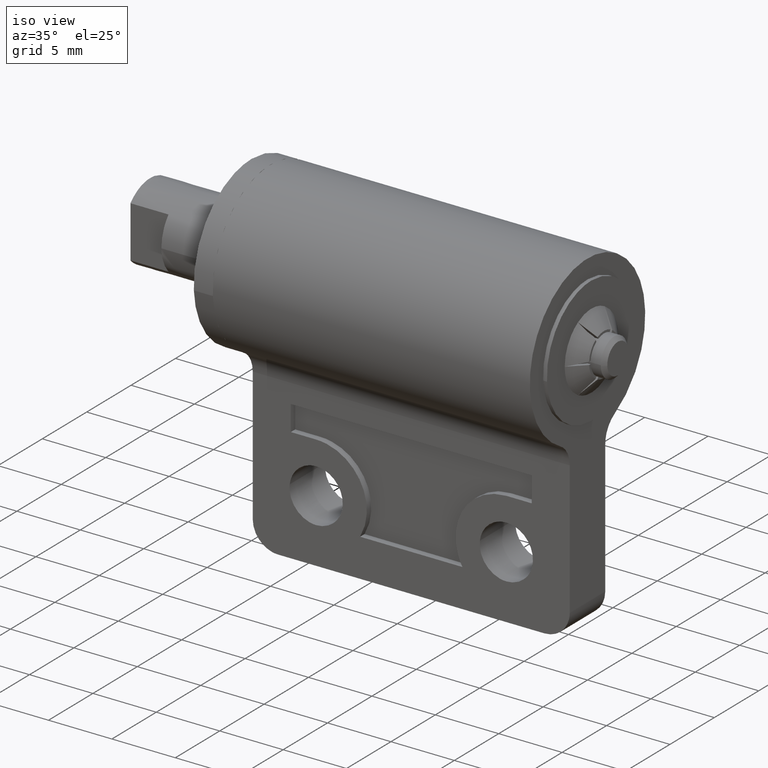
[diagram: clean part render]
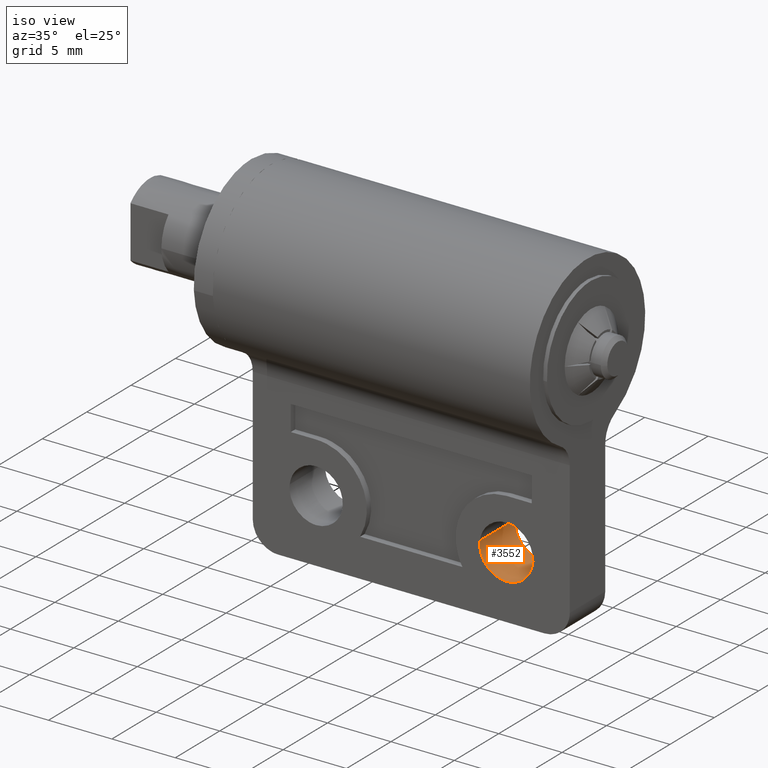
[diagram: same view with one face highlighted and labeled with its STEP entity id]
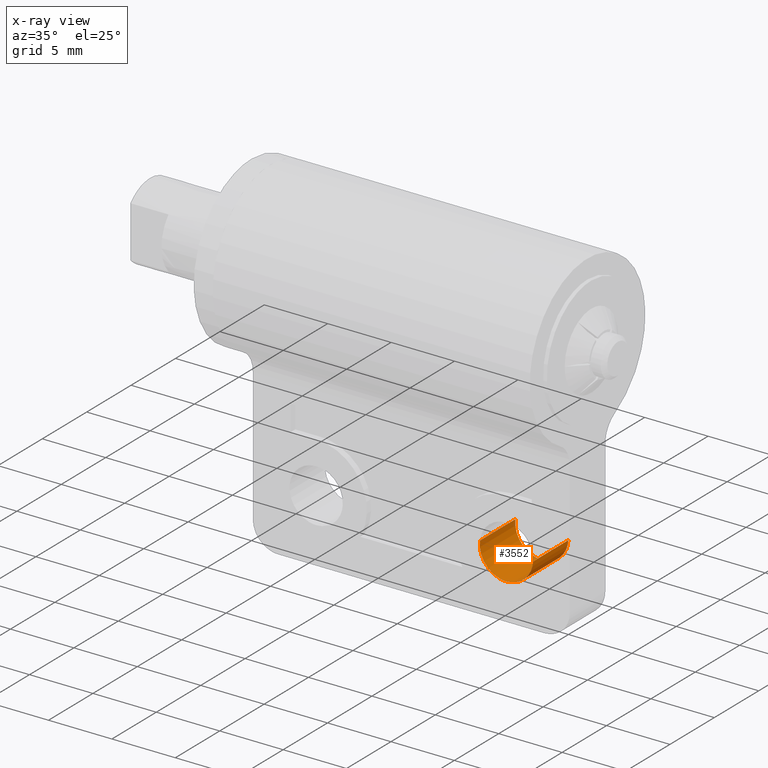
[diagram: x-ray of the same camera — body ghosted, the highlighted face saturated]
A machine part, iso view. The second image highlights one B-rep face of the part: STEP entity #3552.
The next image is the same camera in x-ray: the body ghosted, the highlighted face saturated — about 2% of this face is hidden behind the body in this view.
In plain terms, the highlighted face is a freeform B-spline surface patch.
Its self-contained STEP definition (entity closure, byte-faithful):
#3450=CARTESIAN_POINT('',(24.414679994636302,2.099999999999776,-14.752128107220814));
#3451=CARTESIAN_POINT('',(24.407586007557921,2.099999999999775,-14.811809069860246));
#3452=CARTESIAN_POINT('',(24.403916923314078,2.099999999999775,-14.871798066976799));
#3453=CARTESIAN_POINT('',(24.275714990290883,2.099999999999775,-16.967881143662716));
#3454=CARTESIAN_POINT('',(26.371798066976801,2.099999999999775,-17.096083076685922));
#3455=CARTESIAN_POINT('',(28.467881143662723,2.099999999999775,-17.224285009709121));
#3456=CARTESIAN_POINT('',(28.596083076685922,2.099999999999775,-15.128201933023201));
#3457=CARTESIAN_POINT('',(24.414679994636302,-2.102499999999995,-14.752128107220814));
#3458=CARTESIAN_POINT('',(24.407586007557921,-2.102499999999994,-14.811809069860246));
#3459=CARTESIAN_POINT('',(24.403916923314078,-2.102499999999995,-14.871798066976799));
#3460=CARTESIAN_POINT('',(24.275714990290883,-2.102499999999995,-16.967881143662716));
#3461=CARTESIAN_POINT('',(26.371798066976801,-2.102499999999995,-17.096083076685922));
#3462=CARTESIAN_POINT('',(28.467881143662723,-2.102499999999995,-17.224285009709121));
#3463=CARTESIAN_POINT('',(28.596083076685922,-2.102499999999995,-15.128201933023201));
#3471=(BOUNDED_SURFACE()B_SPLINE_SURFACE(2,1,((#3450,#3457),(#3451,#3458),(#3452,#3459),(#3453,#3460),(#3454,#3461),(#3455,#3462),(#3456,#3463)),.UNSPECIFIED.,.F.,.F.,.U.)B_SPLINE_SURFACE_WITH_KNOTS((3,2,2,3),(2,2),(0.0,0.139175756957360,3.618569680891361,7.097963604825362),(0.0,4.202499999999771),.UNSPECIFIED.)GEOMETRIC_REPRESENTATION_ITEM()RATIONAL_B_SPLINE_SURFACE(((0.977505800795127,0.977505800795127),(0.988284271247462,0.988284271247462),(1.0,1.0),(0.707106781186548,0.707106781186548),(1.0,1.0),(0.707106781186548,0.707106781186548),(1.0,1.0)))REPRESENTATION_ITEM('')SURFACE());
#3472=CARTESIAN_POINT('',(24.414679769260239,-2.000000000000016,-14.752130003300460));
#3473=VERTEX_POINT('',#3472);
#3474=CARTESIAN_POINT('',(26.500000000000000,-2.0,-17.100000000000001));
#3475=VERTEX_POINT('',#3474);
#3476=CARTESIAN_POINT('',(24.414679769260236,-2.000000000000016,-14.752130003300465));
#3477=CARTESIAN_POINT('',(24.399999999999999,-2.000000000000000,-14.875630306793241));
#3478=CARTESIAN_POINT('',(24.399999999999999,-2.0,-15.0));
#3479=CARTESIAN_POINT('',(24.400000000000002,-2.000000000000000,-17.099999999999994));
#3480=CARTESIAN_POINT('',(26.500000000000000,-2.0,-17.100000000000001));
#3488=(BOUNDED_CURVE()B_SPLINE_CURVE(2,(#3476,#3477,#3478,#3479,#3480),.UNSPECIFIED.,.F.,.U.)B_SPLINE_CURVE_WITH_KNOTS((3,2,3),(0.229562627182055,0.250000000000000,0.500000000000000),.UNSPECIFIED.)CURVE()GEOMETRIC_REPRESENTATION_ITEM()RATIONAL_B_SPLINE_CURVE((0.956027055380560,0.976056128365046,1.0,0.707106781186548,1.0))REPRESENTATION_ITEM(''));
#3489=EDGE_CURVE('',#3473,#3475,#3488,.T.);
#3490=ORIENTED_EDGE('',*,*,#3489,.T.);
#3491=CARTESIAN_POINT('',(28.596083076684870,-2.0,-15.128201933040470));
#3492=VERTEX_POINT('',#3491);
#3493=CARTESIAN_POINT('',(26.500000000000000,-2.0,-17.100000000000001));
#3494=CARTESIAN_POINT('',(28.475482740469356,-2.000000000000000,-17.100000000000001));
#3495=CARTESIAN_POINT('',(28.596083076684870,-2.000000000000000,-15.128201933040462));
#3503=(BOUNDED_CURVE()B_SPLINE_CURVE(2,(#3493,#3494,#3495),.UNSPECIFIED.,.F.,.U.)B_SPLINE_CURVE_WITH_KNOTS((3,3),(0.500000000000000,0.739332962239125),.UNSPECIFIED.)CURVE()GEOMETRIC_REPRESENTATION_ITEM()RATIONAL_B_SPLINE_CURVE((1.0,0.719603993286497,0.976072041667108))REPRESENTATION_ITEM(''));
#3504=EDGE_CURVE('',#3475,#3492,#3503,.T.);
#3505=ORIENTED_EDGE('',*,*,#3504,.T.);
#3506=CARTESIAN_POINT('',(28.596083076684859,1.999999999999780,-15.128201933040470));
#3507=VERTEX_POINT('',#3506);
#3508=CARTESIAN_POINT('',(28.596083076684859,1.999999999999780,-15.128201933040470));
#3509=CARTESIAN_POINT('',(28.596083076684870,-2.0,-15.128201933040470));
#3510=QUASI_UNIFORM_CURVE('',1,(#3508,#3509),.UNSPECIFIED.,.F.,.U.);
#3511=EDGE_CURVE('',#3507,#3492,#3510,.T.);
#3512=ORIENTED_EDGE('',*,*,#3511,.F.);
#3513=CARTESIAN_POINT('',(26.500000000000000,1.999999999999780,-17.100000000000001));
#3514=VERTEX_POINT('',#3513);
#3515=CARTESIAN_POINT('',(26.500000000000000,1.999999999999780,-17.100000000000001));
#3516=CARTESIAN_POINT('',(28.475482740469356,1.999999999999781,-17.100000000000001));
#3517=CARTESIAN_POINT('',(28.596083076684859,1.999999999999780,-15.128201933040462));
#3525=(BOUNDED_CURVE()B_SPLINE_CURVE(2,(#3515,#3516,#3517),.UNSPECIFIED.,.F.,.U.)B_SPLINE_CURVE_WITH_KNOTS((3,3),(0.500000000000000,0.739332962239125),.UNSPECIFIED.)CURVE()GEOMETRIC_REPRESENTATION_ITEM()RATIONAL_B_SPLINE_CURVE((1.0,0.719603993286497,0.976072041667108))REPRESENTATION_ITEM(''));
#3526=EDGE_CURVE('',#3514,#3507,#3525,.T.);
#3527=ORIENTED_EDGE('',*,*,#3526,.F.);
#3528=CARTESIAN_POINT('',(24.414679772047521,1.999999999999780,-14.752129979850981));
#3529=VERTEX_POINT('',#3528);
#3530=CARTESIAN_POINT('',(24.414679772047524,1.999999999999781,-14.752129979850977));
#3531=CARTESIAN_POINT('',(24.399999999999999,1.999999999999781,-14.875630294944557));
#3532=CARTESIAN_POINT('',(24.399999999999999,1.999999999999780,-15.0));
#3533=CARTESIAN_POINT('',(24.400000000000002,1.999999999999780,-17.099999999999994));
#3534=CARTESIAN_POINT('',(26.500000000000000,1.999999999999780,-17.100000000000001));
#3542=(BOUNDED_CURVE()B_SPLINE_CURVE(2,(#3530,#3531,#3532,#3533,#3534),.UNSPECIFIED.,.F.,.U.)B_SPLINE_CURVE_WITH_KNOTS((3,2,3),(0.229562625281609,0.250000000000000,0.500000000000000),.UNSPECIFIED.)CURVE()GEOMETRIC_REPRESENTATION_ITEM()RATIONAL_B_SPLINE_CURVE((0.956027051655602,0.976056126138535,1.0,0.707106781186548,1.0))REPRESENTATION_ITEM(''));
#3543=EDGE_CURVE('',#3529,#3514,#3542,.T.);
#3544=ORIENTED_EDGE('',*,*,#3543,.F.);
#3545=CARTESIAN_POINT('',(24.414679772047521,1.999999999999780,-14.752129979850981));
#3546=CARTESIAN_POINT('',(24.414679769260239,-2.000000000000016,-14.752130003300460));
#3547=QUASI_UNIFORM_CURVE('',1,(#3545,#3546),.UNSPECIFIED.,.F.,.U.);
#3548=EDGE_CURVE('',#3529,#3473,#3547,.T.);
#3549=ORIENTED_EDGE('',*,*,#3548,.T.);
#3550=EDGE_LOOP('',(#3490,#3505,#3512,#3527,#3544,#3549));
#3551=FACE_OUTER_BOUND('',#3550,.T.);
#3552=ADVANCED_FACE('',(#3551),#3471,.F.);